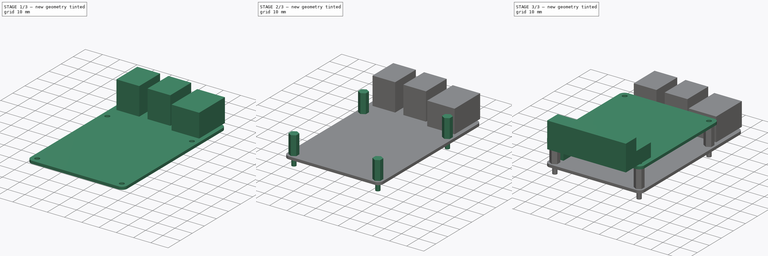
[diagram: build sequence overview — one tinted view per stage of 3, left to right]
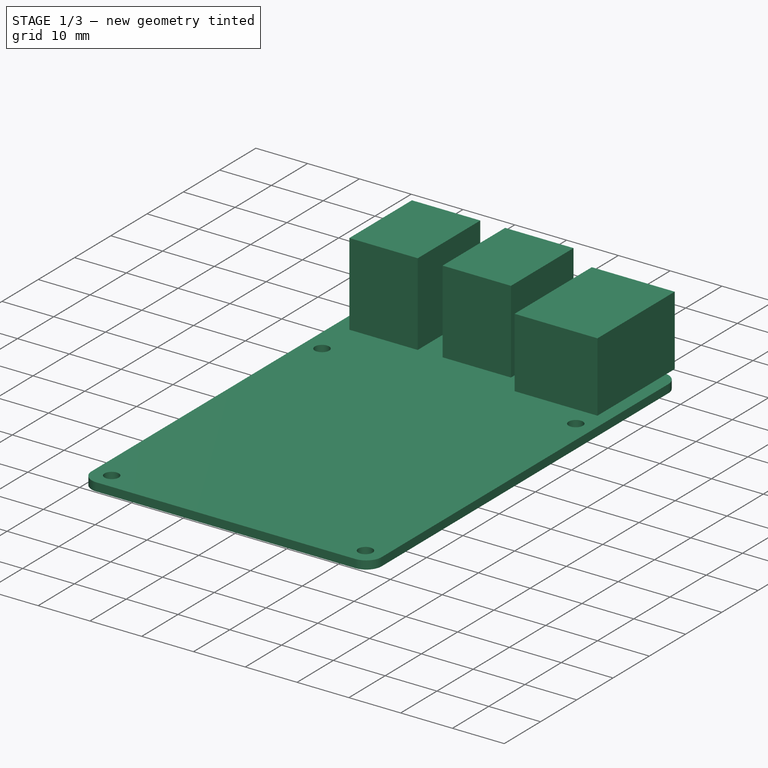
[diagram: stage 1 of 3 — iso view after this stage's code; geometry added in this stage tinted green]
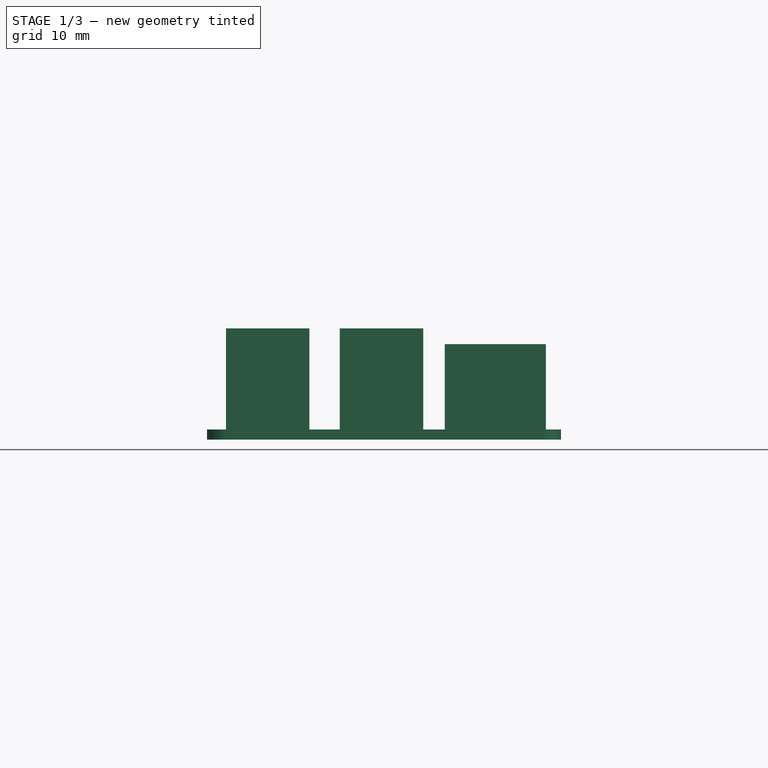
[diagram: stage 1 of 3 — front view after this stage's code; geometry added in this stage tinted green]
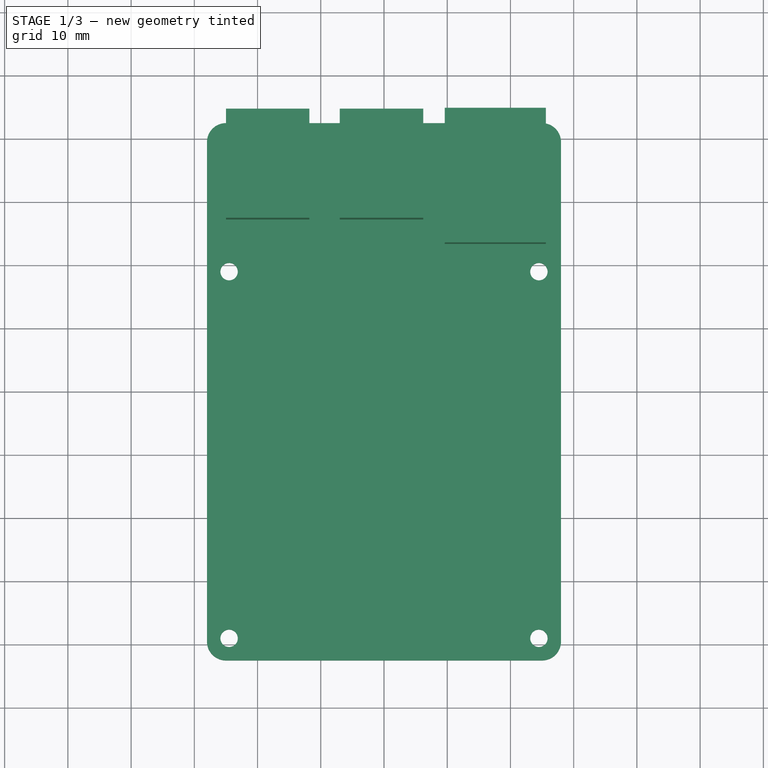
[diagram: stage 1 of 3 — top view after this stage's code; geometry added in this stage tinted green]
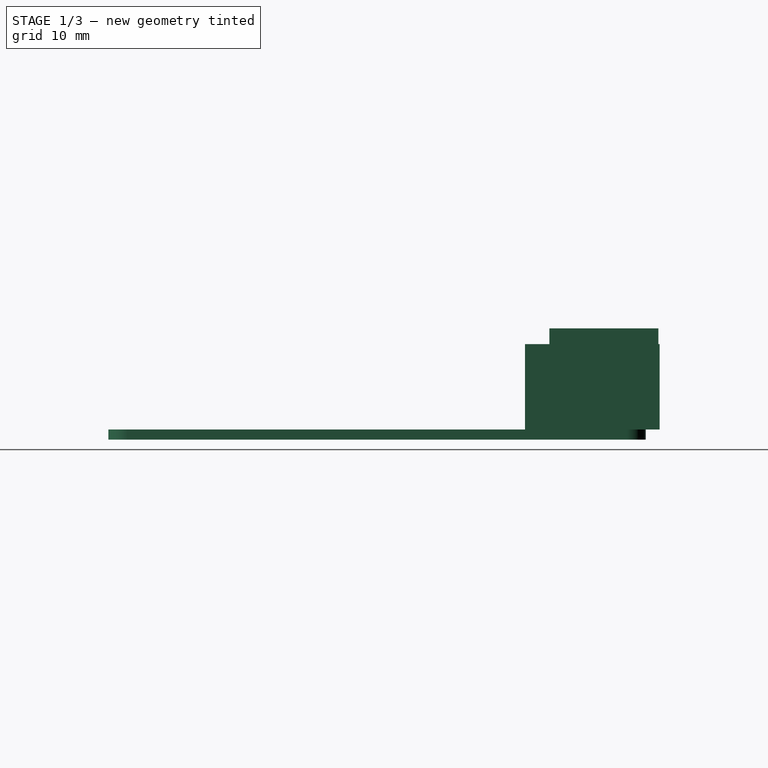
[diagram: stage 1 of 3 — right view after this stage's code; geometry added in this stage tinted green]
FCSTD DOCUMENT  (FreeCAD 0.20R29177 (Git))
Label: RaspberryPi
License: All rights reserved
LicenseURL: https://en.wikipedia.org/wiki/All_rights_reserved
objects: Sketcher::SketchObject×8, PartDesign::Pad×8, PartDesign::Body×1
note: 25 computed .brp shape members not serialized (recipe doc carries the construction recipe); baked Part::Feature solids carry a one-line shape summary decoded from their .brp

FEATURE [Sketcher::SketchObject] Sketch
  FullyConstrained = true
  MapMode = 5
  Support = -> [XY_Plane]
  sketch-geometry (14):
    g0: ArcOfCircle CenterX=-25 CenterY=39.5 CenterZ=0 NormalX=0 NormalY=0 NormalZ=1 AngleXU=0 Radius=3 StartAngle=1.5708 EndAngle=3.14159
    g1: LineSegment StartX=-25 StartY=42.5 StartZ=0 EndX=25 EndY=42.5 EndZ=0
    g2: ArcOfCircle CenterX=25 CenterY=39.5 CenterZ=0 NormalX=0 NormalY=0 NormalZ=1 AngleXU=0 Radius=3 StartAngle=-3.8751e-12 EndAngle=1.5708
    g3: LineSegment StartX=28 StartY=39.5 StartZ=0 EndX=28 EndY=-39.5 EndZ=0
    g4: ArcOfCircle CenterX=25 CenterY=-39.5 CenterZ=0 NormalX=0 NormalY=0 NormalZ=1 AngleXU=0 Radius=3 StartAngle=4.71239 EndAngle=6.28319
    g5: LineSegment StartX=25 StartY=-42.5 StartZ=0 EndX=-25 EndY=-42.5 EndZ=0
    g6: ArcOfCircle CenterX=-25 CenterY=-39.5 CenterZ=0 NormalX=0 NormalY=0 NormalZ=1 AngleXU=0 Radius=3 StartAngle=3.14159 EndAngle=4.71239
    g7: LineSegment StartX=-28 StartY=-39.5 StartZ=0 EndX=-28 EndY=39.5 EndZ=0
    g8: GeomPoint X=-28 Y=42.5 Z=0
    g9: GeomPoint X=28 Y=-42.5 Z=0
    g10: Circle CenterX=-24.5 CenterY=19 CenterZ=0 NormalX=0 NormalY=0 NormalZ=1 AngleXU=0 Radius=1.375
    g11: Circle CenterX=24.5 CenterY=19 CenterZ=0 NormalX=0 NormalY=0 NormalZ=1 AngleXU=0 Radius=1.375
    g12: Circle CenterX=-24.5 CenterY=-39 CenterZ=0 NormalX=0 NormalY=0 NormalZ=1 AngleXU=0 Radius=1.375
    g13: Circle CenterX=24.5 CenterY=-39 CenterZ=0 NormalX=0 NormalY=0 NormalZ=1 AngleXU=0 Radius=1.375
  constraints (35):
    c: Tangent(g0,g1) = 1.5708
    c: Tangent(g1,g2) = 1.5708
    c: Tangent(g2,g3) = 1.5708
    c: Tangent(g3,g4) = 1.5708
    c: Tangent(g4,g5) = 1.5708
    c: Tangent(g5,g6) = 1.5708
    c: Tangent(g6,g7) = 1.5708
    c: Tangent(g7,g0) = 1.5708
    c: Horizontal(g1)
    c: Horizontal(g5)
    c: Vertical(g3)
    c: Vertical(g7)
    c: Equal(g0,g2)
    c: Equal(g2,g4)
    c: Equal(g4,g6)
    c: PointOnObject(g8,g1)
    c: PointOnObject(g8,g7)
    c: PointOnObject(g9,g3)
    c: PointOnObject(g9,g5)
    c: Radius(g0) = 3
    c: Symmetric(g0,g4,g-1)
    c: DistanceX(g0,g2) = 56
    c: DistanceY(g4,g1) = 85
    c: Equal(g11,g13)
    c: Equal(g11,g12)
    c: Equal(g11,g10)
    c: Diameter(g11) = 2.75
    c: DistanceX(g10,g11) = 49
    c: DistanceY(g12,g10) = 58
    c: Vertical(g12,g10)
    c: Horizontal(g10,g11)
    c: Vertical(g11,g13)
    c: Horizontal(g13,g12)
    c: DistanceY(g5,g12) = 3.5
    c: DistanceX(g6,g12) = 3.5
FEATURE [PartDesign::Pad] Pad  label="RaspberryPCB"
  Direction = (0,0,1)
  Length = 1.6
  Length2 = 10
  Profile = -> Sketch
  ReferenceAxis = -> Sketch [N_Axis]
  Type = 0
FEATURE [Sketcher::SketchObject] Sketch001
  AttachmentOffset = pos=(0,0,1.6) rot=(0,0,1;0rad)
  ExternalGeometry = -> [Sketch]
  FullyConstrained = true
  MapMode = 5
  Placement = pos=(0,0,1.6) rot=(0,0,1;0rad)
  Support = -> [XY_Plane]
  sketch-geometry (4):
    g0: LineSegment StartX=9.6 StartY=44.7 StartZ=0 EndX=25.6 EndY=44.7 EndZ=0
    g1: LineSegment StartX=25.6 StartY=44.7 StartZ=0 EndX=25.6 EndY=23.4 EndZ=0
    g2: LineSegment StartX=25.6 StartY=23.4 StartZ=0 EndX=9.6 EndY=23.4 EndZ=0
    g3: LineSegment StartX=9.6 StartY=23.4 StartZ=0 EndX=9.6 EndY=44.7 EndZ=0
  constraints (12):
    c: Coincident(g0,g1)
    c: Coincident(g1,g2)
    c: Coincident(g2,g3)
    c: Coincident(g3,g0)
    c: Horizontal(g0)
    c: Horizontal(g2)
    c: Vertical(g1)
    c: Vertical(g3)
    c: DistanceX(g0,g0) = 16
    c: DistanceY(g1,g1) = 21.3
    c: DistanceX(g0,g-3) = 2.4
    c: DistanceY(g-3,g0) = 2.2
FEATURE [PartDesign::Pad] Pad001  label="Ethernet"
  BaseFeature = -> Pad
  Direction = (0,0,1)
  Length = 13.5
  Length2 = 10
  Profile = -> Sketch001
  ReferenceAxis = -> Sketch001 [N_Axis]
  Type = 0
FEATURE [Sketcher::SketchObject] Sketch002
  AttachmentOffset = pos=(0,0,1.6) rot=(0,0,1;0rad)
  ExternalGeometry = -> [Sketch]
  FullyConstrained = true
  MapMode = 5
  Placement = pos=(0,0,1.6) rot=(0,0,1;0rad)
  Support = -> [XY_Plane]
  sketch-geometry (8):
    g0: LineSegment StartX=-25 StartY=44.5 StartZ=0 EndX=-11.8 EndY=44.5 EndZ=0
    g1: LineSegment StartX=-11.8 StartY=44.5 StartZ=0 EndX=-11.8 EndY=27.25 EndZ=0
    g2: LineSegment StartX=-11.8 StartY=27.25 StartZ=0 EndX=-25 EndY=27.25 EndZ=0
    g3: LineSegment StartX=-25 StartY=27.25 StartZ=0 EndX=-25 EndY=44.5 EndZ=0
    g4: LineSegment StartX=-7 StartY=44.5 StartZ=0 EndX=6.2 EndY=44.5 EndZ=0
    g5: LineSegment StartX=6.2 StartY=44.5 StartZ=0 EndX=6.2 EndY=27.25 EndZ=0
    g6: LineSegment StartX=6.2 StartY=27.25 StartZ=0 EndX=-7 EndY=27.25 EndZ=0
    g7: LineSegment StartX=-7 StartY=27.25 StartZ=0 EndX=-7 EndY=44.5 EndZ=0
  constraints (24):
    c: Coincident(g0,g1)
    c: Coincident(g1,g2)
    c: Coincident(g2,g3)
    c: Coincident(g3,g0)
    c: Horizontal(g0)
    c: Horizontal(g2)
    c: Vertical(g1)
    c: Vertical(g3)
    c: DistanceX(g0,g0) = 13.2
    c: DistanceY(g3,g3) = 17.25
    c: Coincident(g4,g5)
    c: Coincident(g5,g6)
    c: Coincident(g6,g7)
    c: Coincident(g7,g4)
    c: Horizontal(g4)
    c: Horizontal(g6)
    c: Vertical(g5)
    c: Vertical(g7)
    c: Equal(g7,g1)
    c: Equal(g6,g2)
    c: Horizontal(g0,g4)
    c: DistanceX(g0,g4) = 4.8
    c: DistanceX(g-3,g0) = 3
    c: DistanceY(g-3,g0) = 2
FEATURE [PartDesign::Pad] Pad002  label="USB"
  BaseFeature = -> Pad001
  Direction = (0,0,1)
  Length = 16
  Length2 = 10
  Profile = -> Sketch002
  ReferenceAxis = -> Sketch002 [N_Axis]
  Type = 0
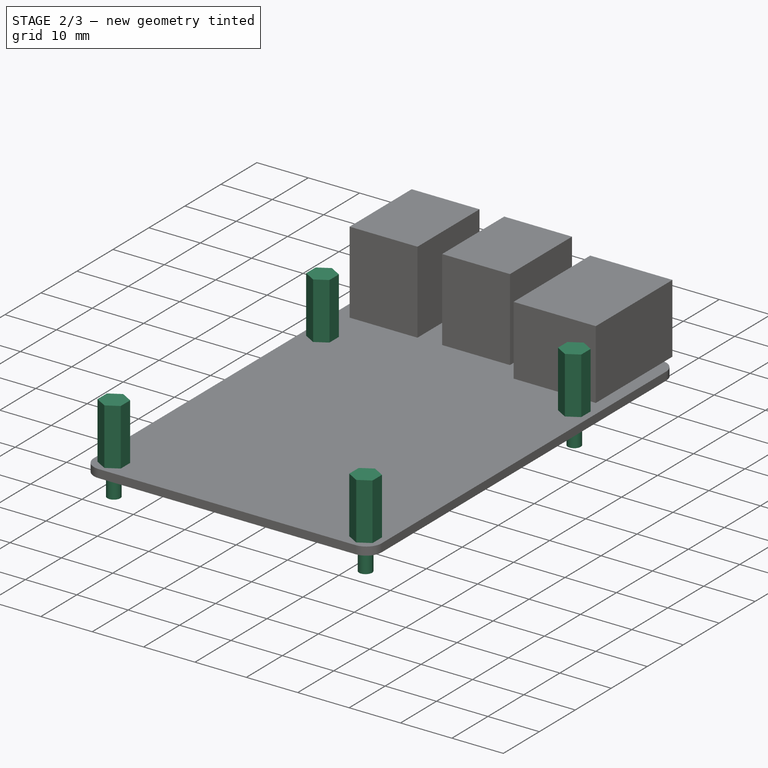
[diagram: stage 2 of 3 — iso view after this stage's code; geometry added in this stage tinted green]
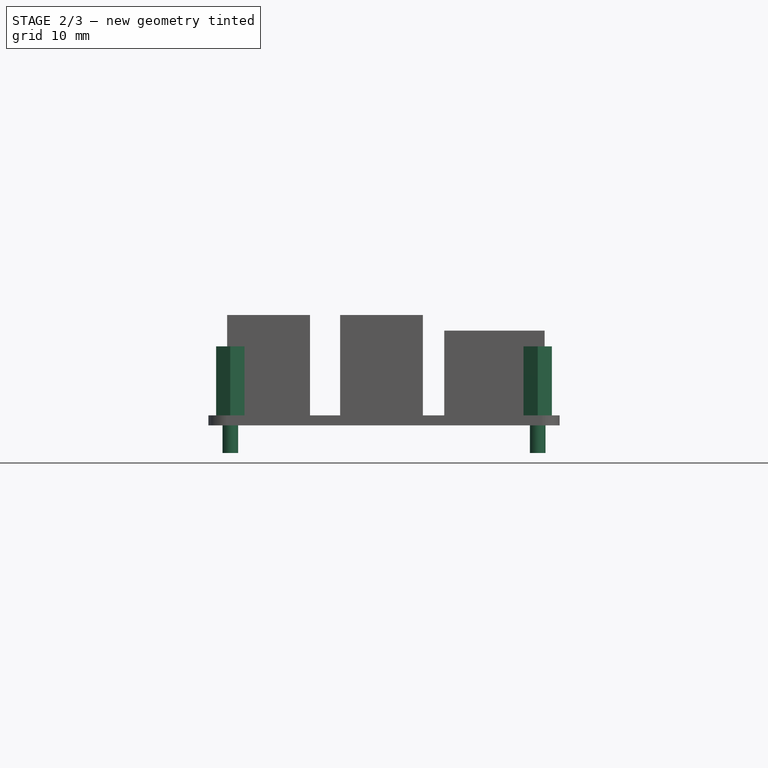
[diagram: stage 2 of 3 — front view after this stage's code; geometry added in this stage tinted green]
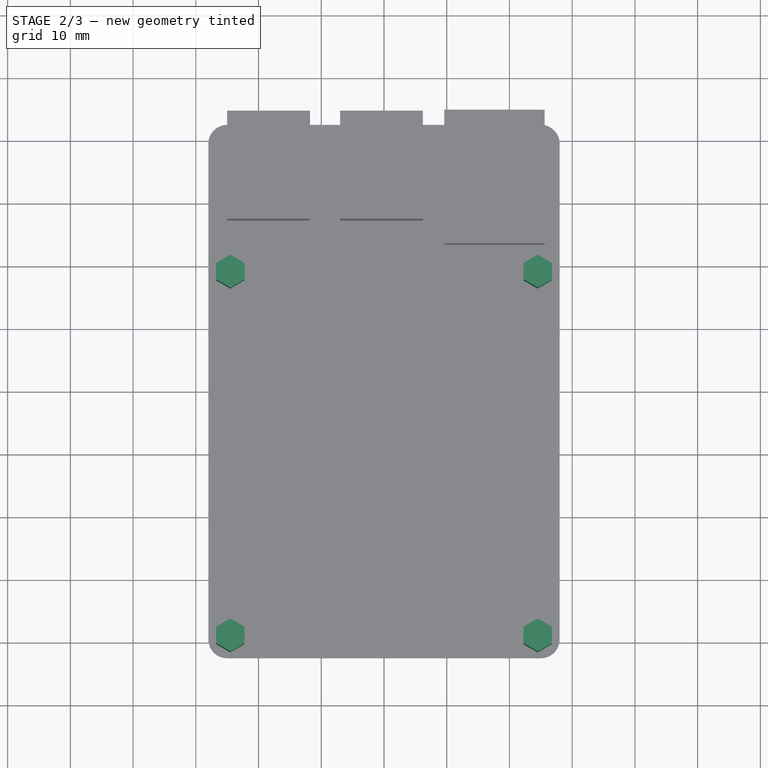
[diagram: stage 2 of 3 — top view after this stage's code; geometry added in this stage tinted green]
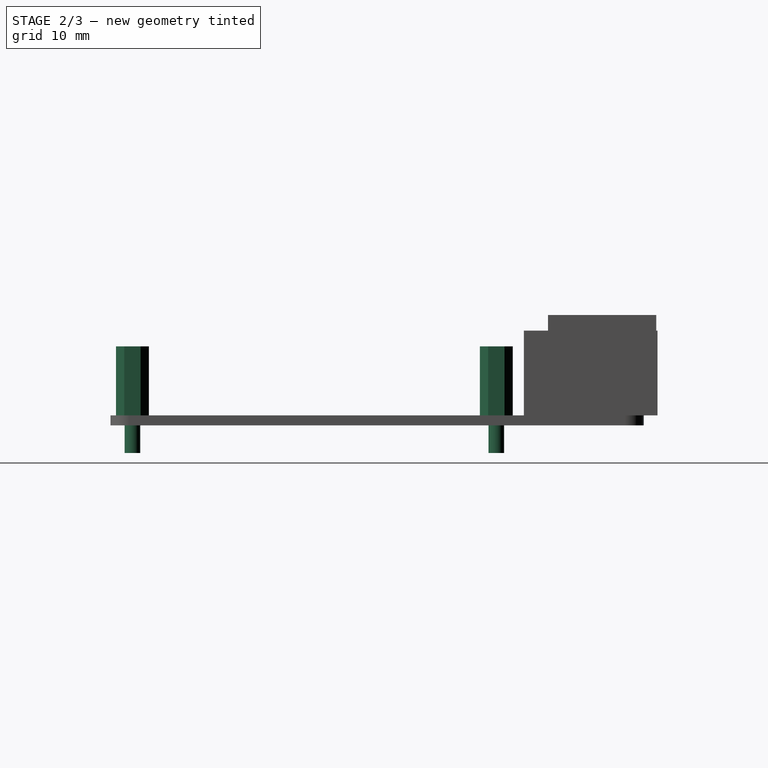
[diagram: stage 2 of 3 — right view after this stage's code; geometry added in this stage tinted green]
FEATURE [Sketcher::SketchObject] Sketch010
  AttachmentOffset = pos=(0,0,1.6) rot=(0,0,1;0rad)
  ExternalGeometry = -> [Sketch]
  FullyConstrained = true
  MapMode = 5
  Placement = pos=(0,0,1.6) rot=(0,0,1;0rad)
  Support = -> [XY_Plane]
  sketch-geometry (28):
    g0: LineSegment StartX=-22.2353 StartY=-40.3075 StartZ=0 EndX=-22.2353 EndY=-37.6925 EndZ=0
    g1: LineSegment StartX=-22.2353 StartY=-37.6925 StartZ=0 EndX=-24.5 EndY=-36.385 EndZ=0
    g2: LineSegment StartX=-24.5 StartY=-36.385 StartZ=0 EndX=-26.7647 EndY=-37.6925 EndZ=0
    g3: LineSegment StartX=-26.7647 StartY=-37.6925 StartZ=0 EndX=-26.7647 EndY=-40.3075 EndZ=0
    g4: LineSegment StartX=-26.7647 StartY=-40.3075 StartZ=0 EndX=-24.5 EndY=-41.615 EndZ=0
    g5: LineSegment StartX=-24.5 StartY=-41.615 StartZ=0 EndX=-22.2353 EndY=-40.3075 EndZ=0
    g6: Circle CenterX=-24.5 CenterY=-39 CenterZ=0 NormalX=0 NormalY=0 NormalZ=1 AngleXU=0 Radius=2.615
    g7: LineSegment StartX=-22.2353 StartY=17.6925 StartZ=0 EndX=-22.2353 EndY=20.3075 EndZ=0
    g8: LineSegment StartX=-22.2353 StartY=20.3075 StartZ=0 EndX=-24.5 EndY=21.615 EndZ=0
    g9: LineSegment StartX=-24.5 StartY=21.615 StartZ=0 EndX=-26.7647 EndY=20.3075 EndZ=0
    g10: LineSegment StartX=-26.7647 StartY=20.3075 StartZ=0 EndX=-26.7647 EndY=17.6925 EndZ=0
    g11: LineSegment StartX=-26.7647 StartY=17.6925 StartZ=0 EndX=-24.5 EndY=16.385 EndZ=0
    g12: LineSegment StartX=-24.5 StartY=16.385 StartZ=0 EndX=-22.2353 EndY=17.6925 EndZ=0
    g13: Circle CenterX=-24.5 CenterY=19 CenterZ=0 NormalX=0 NormalY=0 NormalZ=1 AngleXU=0 Radius=2.615
    g14: LineSegment StartX=24.5 StartY=-41.615 StartZ=0 EndX=26.7647 EndY=-40.3075 EndZ=0
    g15: LineSegment StartX=26.7647 StartY=-40.3075 StartZ=0 EndX=26.7647 EndY=-37.6925 EndZ=0
    g16: LineSegment StartX=26.7647 StartY=-37.6925 StartZ=0 EndX=24.5 EndY=-36.385 EndZ=0
    g17: LineSegment StartX=24.5 StartY=-36.385 StartZ=0 EndX=22.2353 EndY=-37.6925 EndZ=0
    g18: LineSegment StartX=22.2353 StartY=-37.6925 StartZ=0 EndX=22.2353 EndY=-40.3075 EndZ=0
    g19: LineSegment StartX=22.2353 StartY=-40.3075 StartZ=0 EndX=24.5 EndY=-41.615 EndZ=0
    g20: Circle CenterX=24.5 CenterY=-39 CenterZ=0 NormalX=0 NormalY=0 NormalZ=1 AngleXU=0 Radius=2.615
    g21: LineSegment StartX=24.5 StartY=16.385 StartZ=0 EndX=26.7647 EndY=17.6925 EndZ=0
    g22: LineSegment StartX=26.7647 StartY=17.6925 StartZ=0 EndX=26.7647 EndY=20.3075 EndZ=0
    g23: LineSegment StartX=26.7647 StartY=20.3075 StartZ=0 EndX=24.5 EndY=21.615 EndZ=0
    g24: LineSegment StartX=24.5 StartY=21.615 StartZ=0 EndX=22.2353 EndY=20.3075 EndZ=0
    g25: LineSegment StartX=22.2353 StartY=20.3075 StartZ=0 EndX=22.2353 EndY=17.6925 EndZ=0
    g26: LineSegment StartX=22.2353 StartY=17.6925 StartZ=0 EndX=24.5 EndY=16.385 EndZ=0
    g27: Circle CenterX=24.5 CenterY=19 CenterZ=0 NormalX=0 NormalY=0 NormalZ=1 AngleXU=0 Radius=2.615
  constraints (64):
    c: Coincident(g0,g1)
    c: Coincident(g1,g2)
    c: Coincident(g2,g3)
    c: Coincident(g3,g4)
    c: Coincident(g4,g5)
    c: Coincident(g5,g0)
    c: Equal(g0, g1-g5) x5
    c: PointOnObject(g0,g6)
    c: PointOnObject(g1,g6)
    c: PointOnObject(g2,g6)
    c: PointOnObject(g3,g6)
    c: PointOnObject(g4,g6)
    c: PointOnObject(g5,g6)
    c: Coincident(g6,g-3)
    c: Coincident(g7,g8)
    c: Coincident(g8,g9)
    c: Coincident(g9,g10)
    c: Coincident(g10,g11)
    c: Coincident(g11,g12)
    c: Coincident(g12,g7)
    c: Equal(g7, g8-g12) x5
    c: PointOnObject(g7,g13)
    c: PointOnObject(g8,g13)
    c: PointOnObject(g9,g13)
    c: PointOnObject(g10,g13)
    c: PointOnObject(g11,g13)
    c: PointOnObject(g12,g13)
    c: Coincident(g13,g-4)
    c: Equal(g6,g13)
    c: Diameter(g6) = 5.23
    c: Vertical(g0)
    c: Vertical(g7)
    c: Coincident(g14,g15)
    c: Coincident(g15,g16)
    c: Coincident(g16,g17)
    c: Coincident(g17,g18)
    c: Coincident(g18,g19)
    c: Coincident(g19,g14)
    c: Equal(g14, g15-g19) x5
    c: PointOnObject(g14,g20)
    c: PointOnObject(g15,g20)
    c: PointOnObject(g16,g20)
    c: PointOnObject(g17,g20)
    c: PointOnObject(g18,g20)
    c: PointOnObject(g19,g20)
    c: Coincident(g20,g-5)
    c: Coincident(g21,g22)
    c: Coincident(g22,g23)
    c: Coincident(g23,g24)
    c: Coincident(g24,g25)
    c: Coincident(g25,g26)
    c: Coincident(g26,g21)
    c: Equal(g21, g22-g26) x5
    c: PointOnObject(g21,g27)
    c: PointOnObject(g22,g27)
    c: PointOnObject(g23,g27)
    c: PointOnObject(g24,g27)
    c: PointOnObject(g25,g27)
    c: PointOnObject(g26,g27)
    c: Coincident(g27,g-6)
    c: Equal(g6,g20)
    c: Equal(g6,g27)
    c: Vertical(g22)
    c: Vertical(g15)
FEATURE [PartDesign::Pad] Pad008  label="Standoff"
  BaseFeature = -> Pad002
  Direction = (0,0,1)
  Length = 11
  Length2 = 10
  Profile = -> Sketch010
  ReferenceAxis = -> Sketch010 [N_Axis]
  Type = 0
FEATURE [Sketcher::SketchObject] Sketch011
  AttachmentOffset = pos=(0,0,1.6) rot=(0,0,1;0rad)
  ExternalGeometry = -> [Sketch]
  FullyConstrained = true
  MapMode = 5
  Placement = pos=(0,0,1.6) rot=(0,0,1;0rad)
  Support = -> [XY_Plane]
  sketch-geometry (4):
    g0: Circle CenterX=-24.5 CenterY=19 CenterZ=0 NormalX=0 NormalY=0 NormalZ=1 AngleXU=0 Radius=1.25
    g1: Circle CenterX=-24.5 CenterY=-39 CenterZ=0 NormalX=0 NormalY=0 NormalZ=1 AngleXU=0 Radius=1.25
    g2: Circle CenterX=24.5 CenterY=19 CenterZ=0 NormalX=0 NormalY=0 NormalZ=1 AngleXU=0 Radius=1.25
    g3: Circle CenterX=24.5 CenterY=-39 CenterZ=0 NormalX=0 NormalY=0 NormalZ=1 AngleXU=0 Radius=1.25
  constraints (8):
    c: Coincident(g0,g-4)
    c: Coincident(g1,g-3)
    c: Equal(g1,g0)
    c: Diameter(g1) = 2.5
    c: Coincident(g2,g-5)
    c: Coincident(g3,g-6)
    c: Equal(g1,g3)
    c: Equal(g1,g2)
FEATURE [PartDesign::Pad] Pad009  label="StandoffScrew"
  BaseFeature = -> Pad008
  Direction = (0,0,1)
  Length = 6
  Length2 = 10
  Profile = -> Sketch011
  ReferenceAxis = -> Sketch011 [N_Axis]
  Reversed = true
  Type = 0
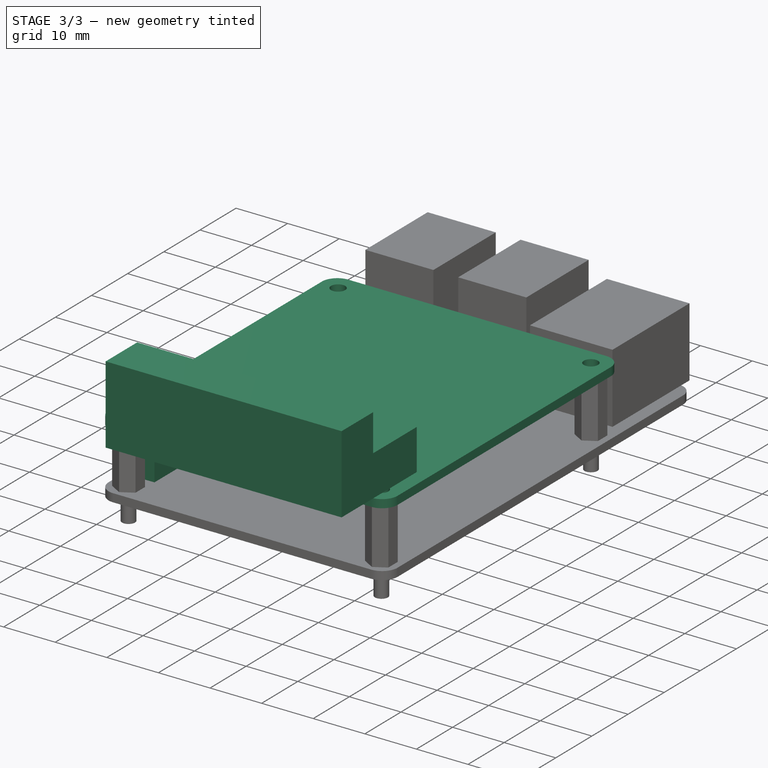
[diagram: stage 3 of 3 — iso view after this stage's code; geometry added in this stage tinted green]
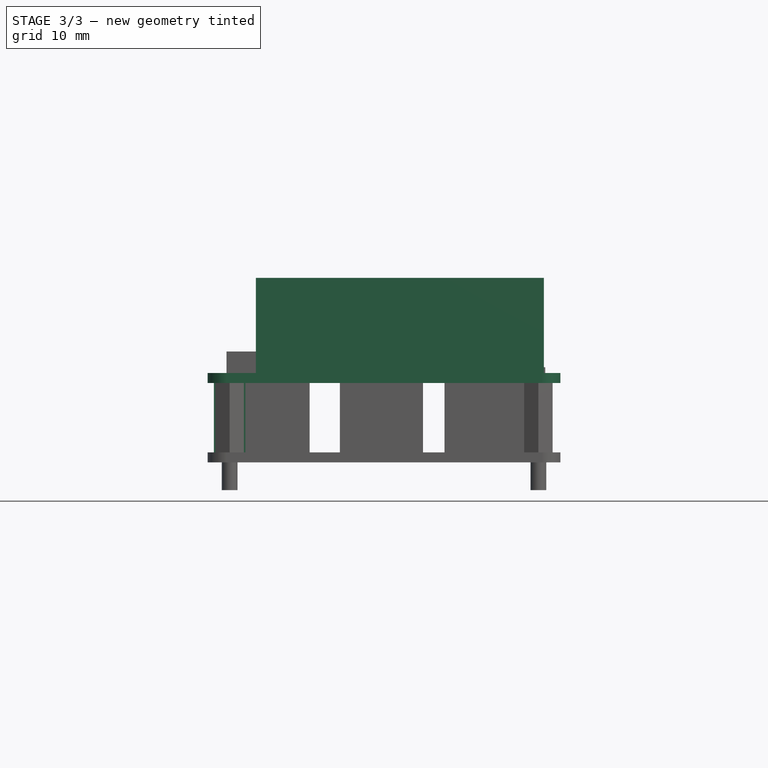
[diagram: stage 3 of 3 — front view after this stage's code; geometry added in this stage tinted green]
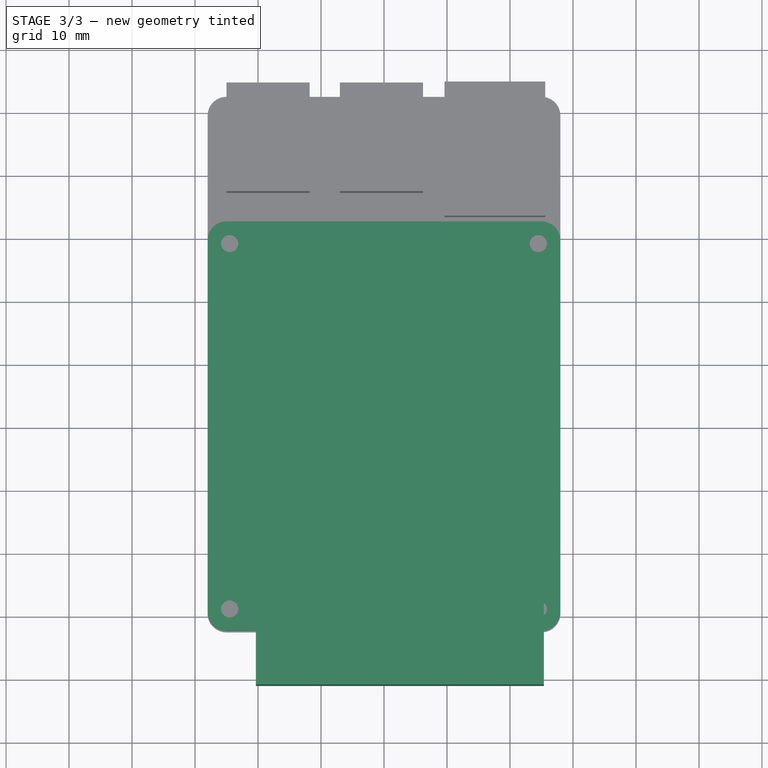
[diagram: stage 3 of 3 — top view after this stage's code; geometry added in this stage tinted green]
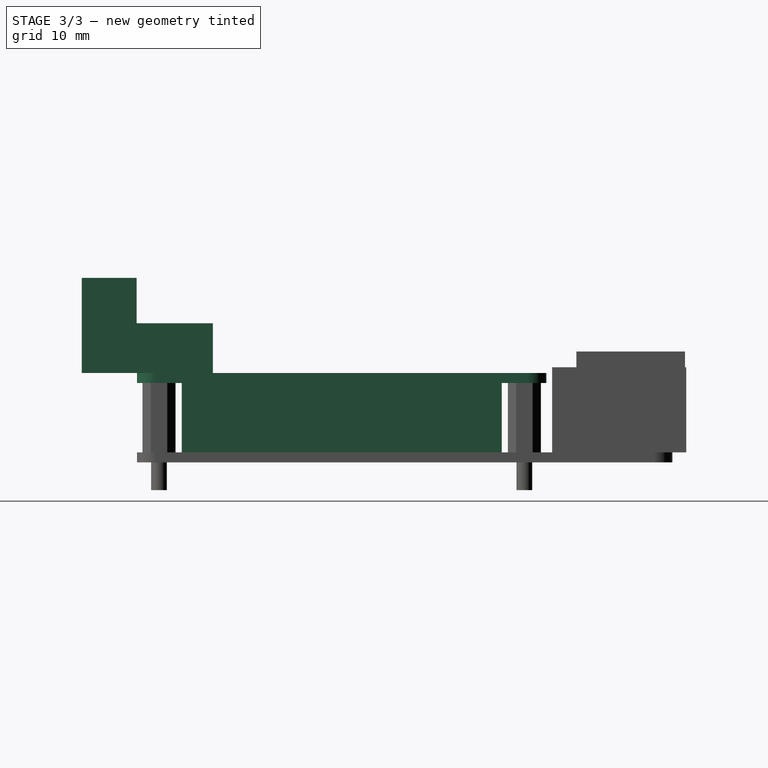
[diagram: stage 3 of 3 — right view after this stage's code; geometry added in this stage tinted green]
FEATURE [Sketcher::SketchObject] Sketch012
  AttachmentOffset = pos=(0,0,1.6) rot=(0,0,1;0rad)
  ExternalGeometry = -> [Sketch]
  FullyConstrained = true
  MapMode = 5
  Placement = pos=(0,0,1.6) rot=(0,0,1;0rad)
  Support = -> [XY_Plane]
  sketch-geometry (5):
    g0: GeomPoint X=-24.5 Y=-10 Z=0
    g1: LineSegment StartX=-27 StartY=15.4 StartZ=0 EndX=-22 EndY=15.4 EndZ=0
    g2: LineSegment StartX=-22 StartY=15.4 StartZ=0 EndX=-22 EndY=-35.4 EndZ=0
    g3: LineSegment StartX=-22 StartY=-35.4 StartZ=0 EndX=-27 EndY=-35.4 EndZ=0
    g4: LineSegment StartX=-27 StartY=-35.4 StartZ=0 EndX=-27 EndY=15.4 EndZ=0
  constraints (12):
    c: Symmetric(g-3,g-4,g0)
    c: Coincident(g1,g2)
    c: Coincident(g2,g3)
    c: Coincident(g3,g4)
    c: Coincident(g4,g1)
    c: Horizontal(g1)
    c: Horizontal(g3)
    c: Vertical(g2)
    c: Vertical(g4)
    c: DistanceX(g3,g3) = 5
    c: DistanceY(g4,g4) = 50.8
    c: Symmetric(g3,g1,g0)
FEATURE [PartDesign::Pad] Pad010  label="PinHeader"
  BaseFeature = -> Pad009
  Direction = (0,0,1)
  Length = 11
  Length2 = 10
  Profile = -> Sketch012
  ReferenceAxis = -> Sketch012 [N_Axis]
  Type = 0
FEATURE [Sketcher::SketchObject] Sketch013
  AttachmentOffset = pos=(0,0,12.6) rot=(0,0,1;0rad)
  ExternalGeometry = -> [Sketch]
  FullyConstrained = true
  MapMode = 5
  Placement = pos=(0,0,12.6) rot=(0,0,1;0rad)
  Support = -> [XY_Plane]
  sketch-geometry (14):
    g0: Circle CenterX=-24.5 CenterY=19 CenterZ=0 NormalX=0 NormalY=0 NormalZ=1 AngleXU=0 Radius=1.375
    g1: Circle CenterX=24.5 CenterY=19 CenterZ=0 NormalX=0 NormalY=0 NormalZ=1 AngleXU=0 Radius=1.375
    g2: Circle CenterX=-24.5 CenterY=-39 CenterZ=0 NormalX=0 NormalY=0 NormalZ=1 AngleXU=0 Radius=1.375
    g3: Circle CenterX=24.5 CenterY=-39 CenterZ=0 NormalX=0 NormalY=0 NormalZ=1 AngleXU=0 Radius=1.375
    g4: ArcOfCircle CenterX=-25 CenterY=19.5 CenterZ=0 NormalX=0 NormalY=0 NormalZ=1 AngleXU=0 Radius=3 StartAngle=1.5708 EndAngle=3.14159
    g5: LineSegment StartX=-25 StartY=22.5 StartZ=0 EndX=25 EndY=22.5 EndZ=0
    g6: ArcOfCircle CenterX=25 CenterY=19.5 CenterZ=0 NormalX=0 NormalY=0 NormalZ=1 AngleXU=0 Radius=3 StartAngle=4e-16 EndAngle=1.5708
    g7: LineSegment StartX=28 StartY=19.5 StartZ=0 EndX=28 EndY=-39.5 EndZ=0
    g8: ArcOfCircle CenterX=25 CenterY=-39.5 CenterZ=0 NormalX=0 NormalY=0 NormalZ=1 AngleXU=0 Radius=3 StartAngle=4.71239 EndAngle=6.28319
    g9: LineSegment StartX=25 StartY=-42.5 StartZ=0 EndX=-25 EndY=-42.5 EndZ=0
    g10: ArcOfCircle CenterX=-25 CenterY=-39.5 CenterZ=0 NormalX=0 NormalY=0 NormalZ=1 AngleXU=0 Radius=3 StartAngle=3.14159 EndAngle=4.71239
    g11: LineSegment StartX=-28 StartY=-39.5 StartZ=0 EndX=-28 EndY=19.5 EndZ=0
    g12: GeomPoint X=-28 Y=22.5 Z=0
    g13: GeomPoint X=28 Y=-42.5 Z=0
  constraints (31):
    c: Coincident(g0,g-4)
    c: Coincident(g2,g-3)
    c: Coincident(g3,g-6)
    c: Tangent(g4,g5) = 1.5708
    c: Tangent(g5,g6) = 1.5708
    c: Tangent(g6,g7) = 1.5708
    c: Tangent(g7,g8) = 1.5708
    c: Tangent(g8,g9) = 1.5708
    c: Tangent(g9,g10) = 1.5708
    c: Tangent(g10,g11) = 1.5708
    c: Tangent(g11,g4) = 1.5708
    c: Horizontal(g5)
    c: Horizontal(g9)
    c: Vertical(g7)
    c: Vertical(g11)
    c: Equal(g4,g6)
    c: Equal(g6,g8)
    c: Equal(g8,g10)
    c: PointOnObject(g12,g5)
    c: PointOnObject(g12,g11)
    c: PointOnObject(g13,g7)
    c: PointOnObject(g13,g9)
    c: Equal(g10,g-7)
    c: Coincident(g9,g-7)
    c: DistanceY(g1,g5) = 3.5
    c: DistanceX(g1,g6) = 3.5
    c: Coincident(g1,g-5)
    c: Equal(g1,g-5)
    c: Equal(g0,g-4)
    c: Equal(g-6,g3)
    c: Equal(g-3,g2)
FEATURE [PartDesign::Pad] Pad011  label="HatPCB"
  BaseFeature = -> Pad010
  Direction = (0,0,1)
  Length = 1.6
  Length2 = 10
  Profile = -> Sketch013
  ReferenceAxis = -> Sketch013 [N_Axis]
  Type = 0
FEATURE [Sketcher::SketchObject] Sketch014
  AttachmentOffset = pos=(-30.45,14.2,-20.34) rot=(0,0,1;0rad)
  FullyConstrained = true
  MapMode = 5
  Placement = pos=(-20.34,-30.45,14.2) rot=(0.57735,0.57735,0.57735;2.0944rad)
  Support = -> [YZ_Plane]
  sketch-geometry (6):
    g0: LineSegment StartX=0 StartY=0 StartZ=0 EndX=0 EndY=7.9 EndZ=0
    g1: LineSegment StartX=0 StartY=7.9 StartZ=0 EndX=-12.1 EndY=7.9 EndZ=0
    g2: LineSegment StartX=-12.1 StartY=7.9 StartZ=0 EndX=-12.1 EndY=15.1 EndZ=0
    g3: LineSegment StartX=-12.1 StartY=15.1 StartZ=0 EndX=-20.82 EndY=15.1 EndZ=0
    g4: LineSegment StartX=-20.82 StartY=15.1 StartZ=0 EndX=-20.82 EndY=0 EndZ=0
    g5: LineSegment StartX=-20.82 StartY=0 StartZ=0 EndX=0 EndY=0 EndZ=0
  constraints (17):
    c: Coincident(g0,g-1)
    c: PointOnObject(g0,g-2)
    c: Coincident(g1,g0)
    c: Horizontal(g1)
    c: Coincident(g2,g1)
    c: Vertical(g2)
    c: Coincident(g3,g2)
    c: Horizontal(g3)
    c: Coincident(g4,g3)
    c: PointOnObject(g4,g-1)
    c: Vertical(g4)
    c: Coincident(g5,g4)
    c: Coincident(g5,g0)
    c: DistanceY(g0,g0) = 7.9
    c: DistanceX(g1,g1) = 12.1
    c: DistanceX(g3,g3) = 8.72
    c: DistanceY(g4,g4) = 15.1
FEATURE [PartDesign::Pad] Pad012  label="ScrewTerminal"
  BaseFeature = -> Pad011
  Direction = (1,-2e-16,3e-16)
  Length = 45.72
  Length2 = 10
  Profile = -> Sketch014
  ReferenceAxis = -> Sketch014 [N_Axis]
  Type = 0
FEATURE [PartDesign::Body] Body  label="RaspberryPi"
  Group = -> [Sketch,Pad,Sketch001,Pad001,Sketch002,Pad002,Sketch010,Pad008,Sketch011,Pad009,Sketch012,Pad010,Sketch013,Pad011,Sketch014,Pad012]
  Origin = -> Origin
  Tip = -> Pad012
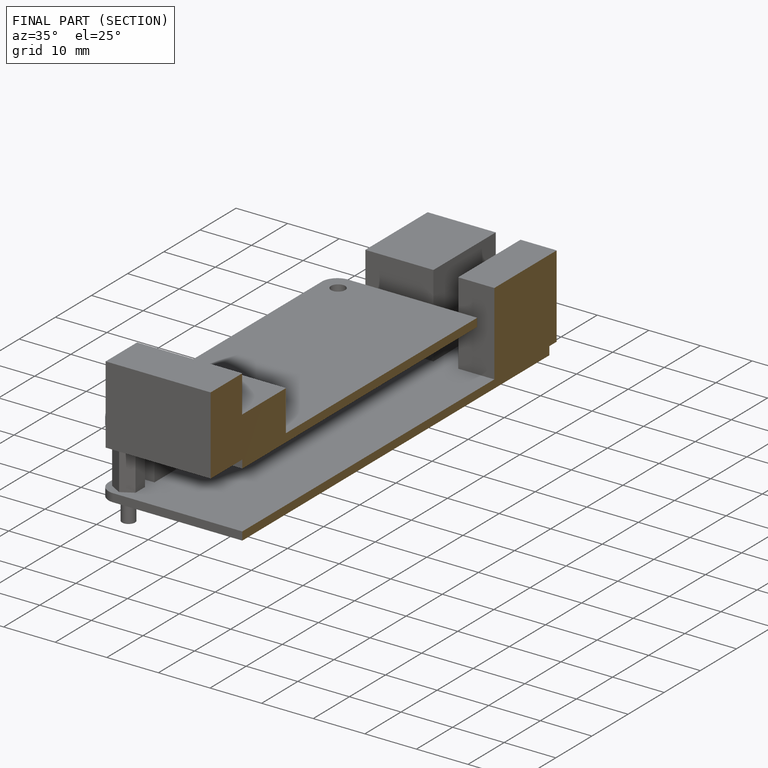
[diagram: finished part — half-section view (interior)]
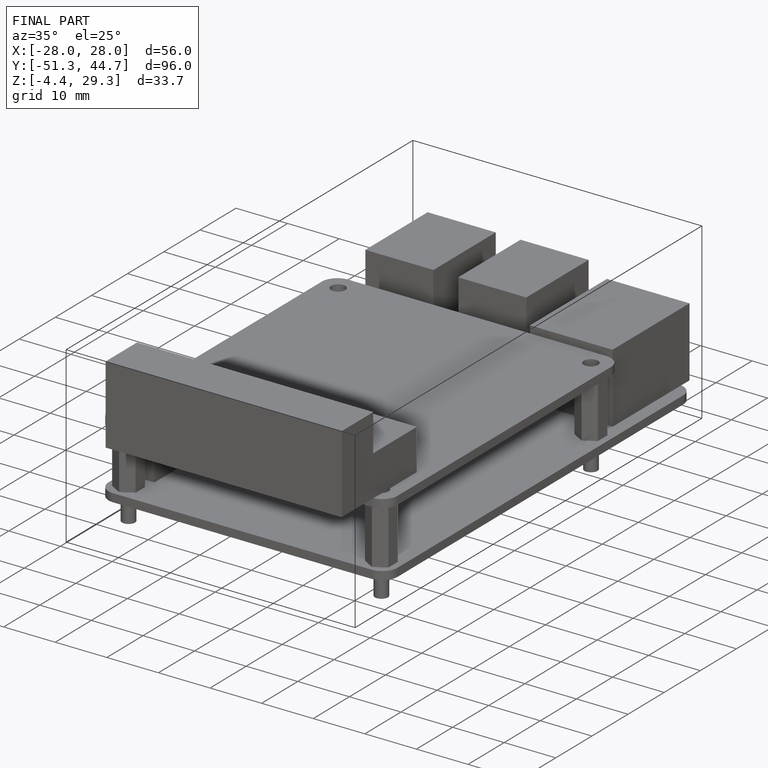
[diagram: finished part — iso view with bounding-box wireframe]
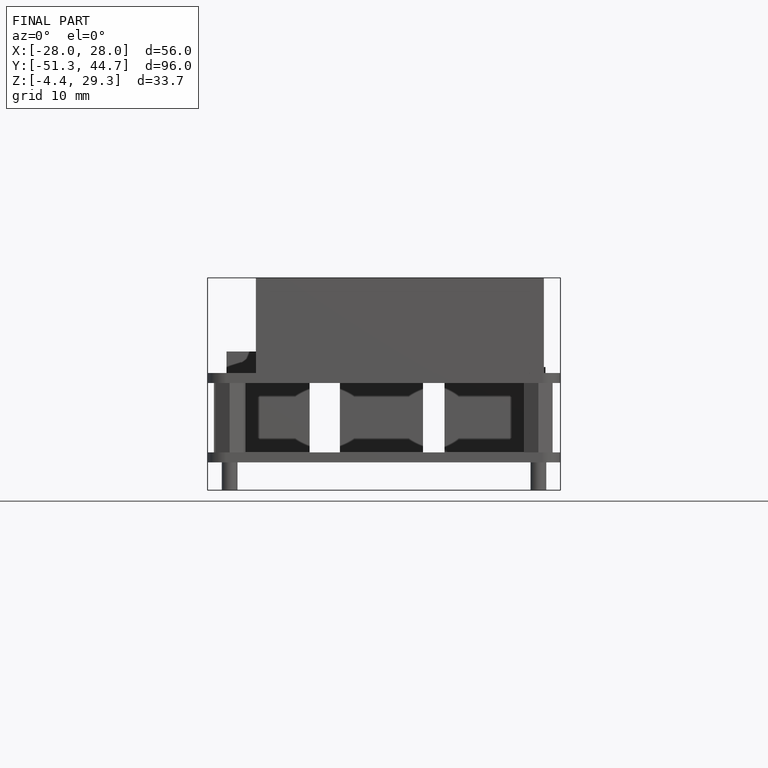
[diagram: finished part — front view with bounding-box wireframe]
